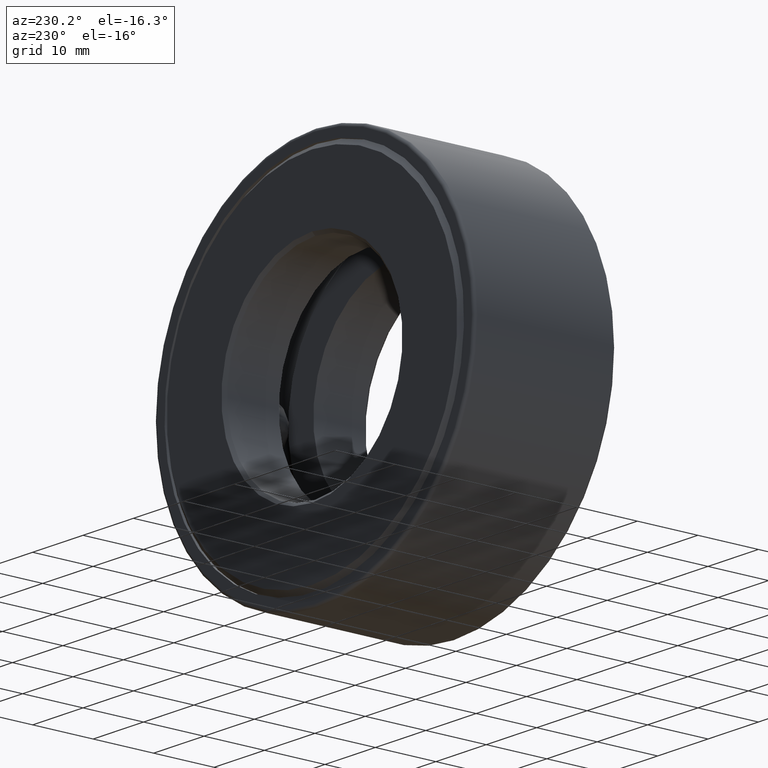
[diagram: clean part render]
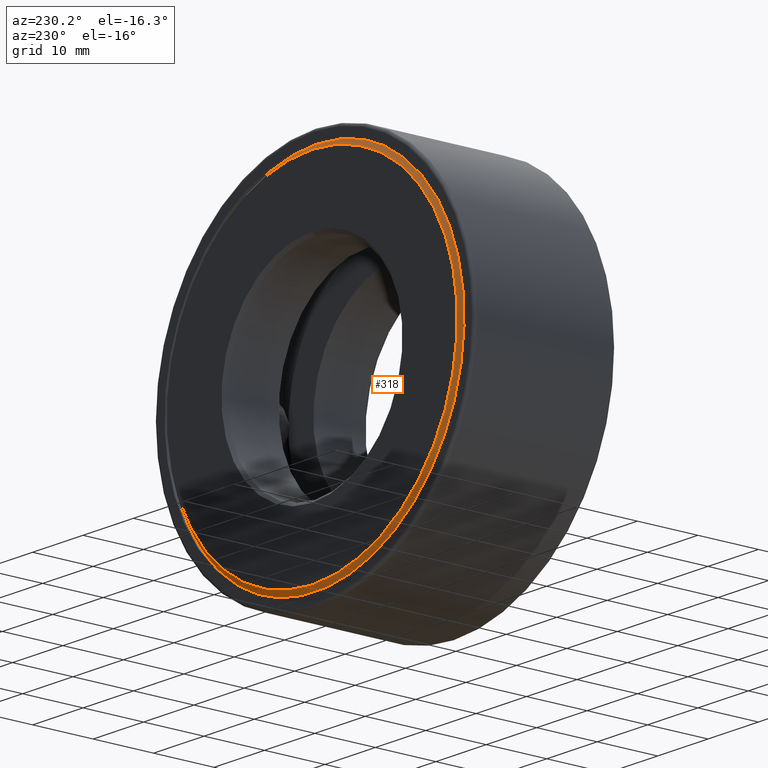
[diagram: same view with one face highlighted and labeled with its STEP entity id]
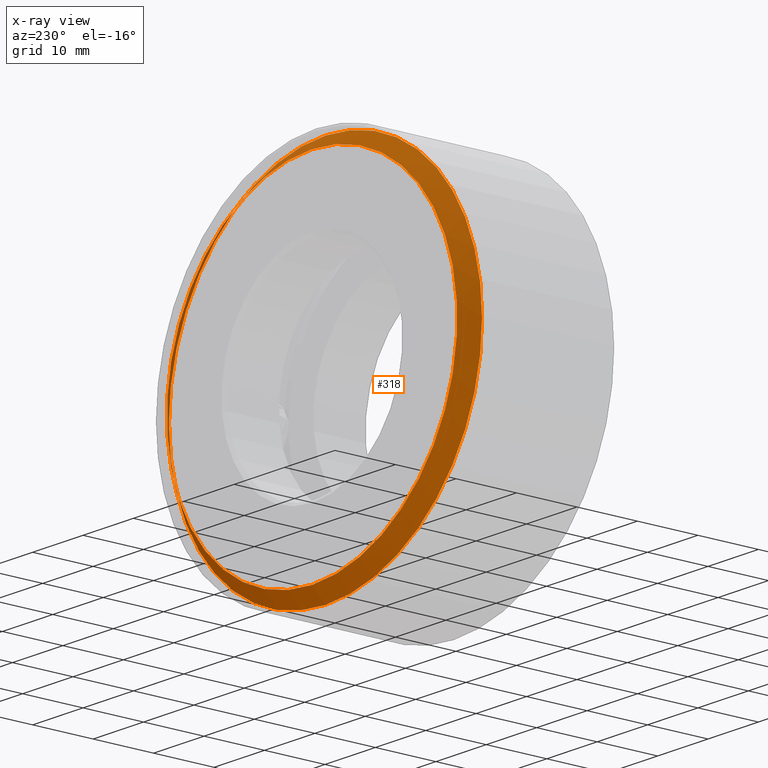
[diagram: x-ray of the same camera — body ghosted, the highlighted face saturated]
A machine part, auxiliary view. The second image highlights one B-rep face of the part: STEP entity #318.
The next image is the same camera in x-ray: the body ghosted, the highlighted face saturated — about 0% of this face is hidden behind the body in this view.
In plain terms, the highlighted conical surface has half-angle 45 deg.
Its self-contained STEP definition (entity closure, byte-faithful):
#29 = CIRCLE ( 'NONE', #269, 1.222999999999999900 ) ;
#103 = DIRECTION ( 'NONE',  ( -0.0000000000000000000, 1.000000000000000000, -0.0000000000000000000 ) ) ;
#122 = AXIS2_PLACEMENT_3D ( 'NONE', #584, #485, #161 ) ;
#125 = EDGE_LOOP ( 'NONE', ( #513 ) ) ;
#127 = EDGE_CURVE ( 'NONE', #552, #552, #29, .T. ) ;
#157 = CONICAL_SURFACE ( 'NONE', #122, 1.134999999999999800, 0.7853981633974490600 ) ;
#161 = DIRECTION ( 'NONE',  ( 0.0000000000000000000, 0.0000000000000000000, -1.000000000000000000 ) ) ;
#171 = FACE_BOUND ( 'NONE', #358, .T. ) ;
#192 = CARTESIAN_POINT ( 'NONE',  ( 0.0000000000000000000, 0.8495000000000000300, 0.0000000000000000000 ) ) ;
#232 = CARTESIAN_POINT ( 'NONE',  ( 0.0000000000000000000, 0.8495000000000000300, 1.222999999999999900 ) ) ;
#245 = EDGE_CURVE ( 'NONE', #362, #362, #525, .T. ) ;
#269 = AXIS2_PLACEMENT_3D ( 'NONE', #192, #296, #433 ) ;
#296 = DIRECTION ( 'NONE',  ( -0.0000000000000000000, 1.000000000000000000, -0.0000000000000000000 ) ) ;
#304 = FACE_OUTER_BOUND ( 'NONE', #125, .T. ) ;
#318 = ADVANCED_FACE ( 'NONE', ( #304, #171 ), #157, .T. ) ;
#358 = EDGE_LOOP ( 'NONE', ( #385 ) ) ;
#362 = VERTEX_POINT ( 'NONE', #508 ) ;
#385 = ORIENTED_EDGE ( 'NONE', *, *, #245, .F. ) ;
#386 = CARTESIAN_POINT ( 'NONE',  ( 0.0000000000000000000, 0.9375000000000000000, 0.0000000000000000000 ) ) ;
#428 = DIRECTION ( 'NONE',  ( 0.0000000000000000000, 0.0000000000000000000, 1.000000000000000000 ) ) ;
#433 = DIRECTION ( 'NONE',  ( 0.0000000000000000000, 0.0000000000000000000, 1.000000000000000000 ) ) ;
#447 = AXIS2_PLACEMENT_3D ( 'NONE', #386, #103, #428 ) ;
#485 = DIRECTION ( 'NONE',  ( 0.0000000000000000000, -1.000000000000000000, 0.0000000000000000000 ) ) ;
#508 = CARTESIAN_POINT ( 'NONE',  ( 0.0000000000000000000, 0.9375000000000000000, 1.134999999999999800 ) ) ;
#513 = ORIENTED_EDGE ( 'NONE', *, *, #127, .T. ) ;
#525 = CIRCLE ( 'NONE', #447, 1.134999999999999800 ) ;
#552 = VERTEX_POINT ( 'NONE', #232 ) ;
#584 = CARTESIAN_POINT ( 'NONE',  ( 0.0000000000000000000, 0.9375000000000000000, 0.0000000000000000000 ) ) ;